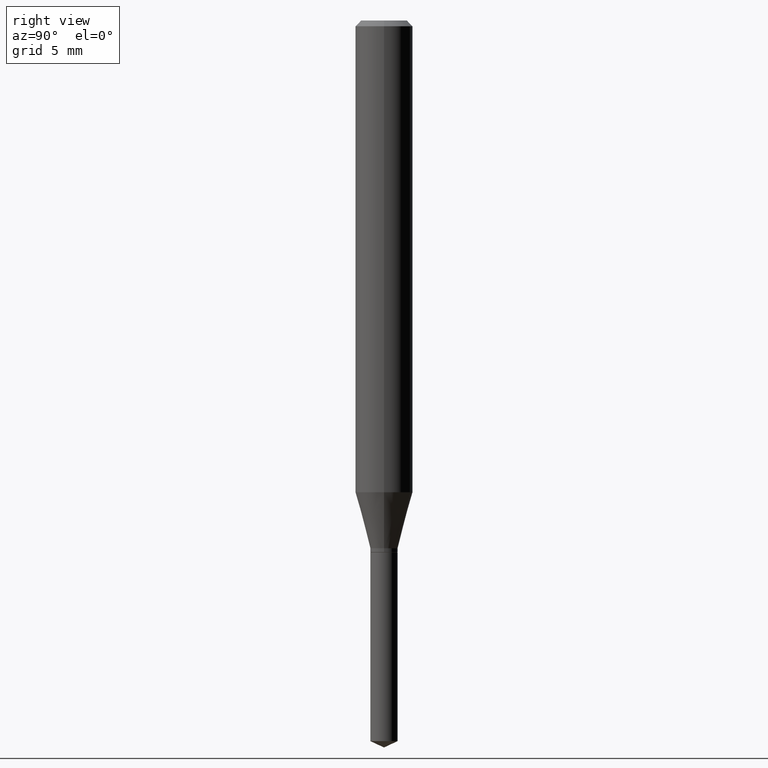
[diagram: clean part render]
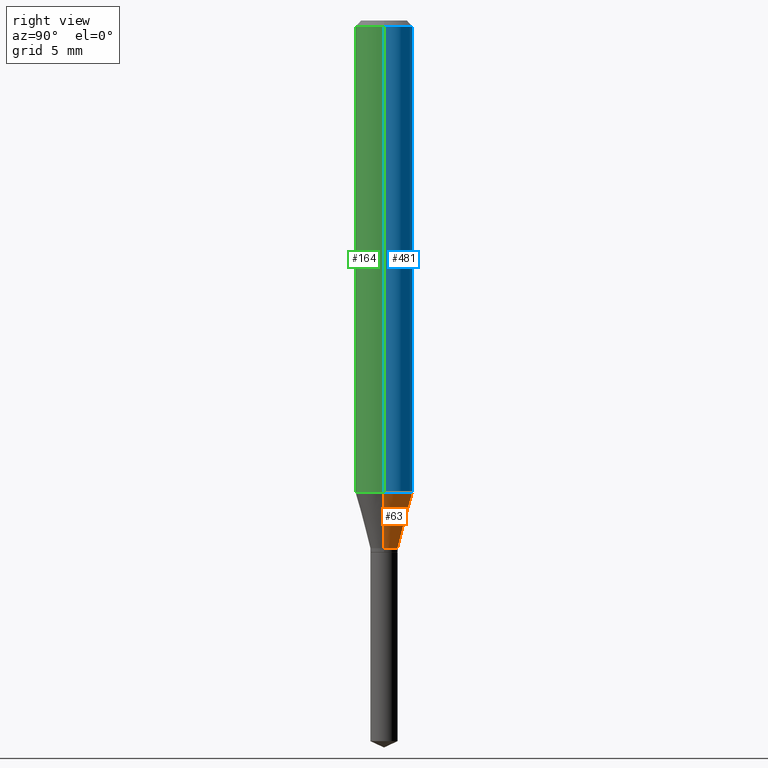
[diagram: same view with three faces highlighted in distinct colors, each labeled with its STEP entity id]
A machine part, right view with three faces highlighted in distinct colors.
Their STEP definitions:

[orange] entity #63 — the highlighted conical surface has half-angle 15 deg.
#17 = EDGE_LOOP ( 'NONE', ( #115, #308, #153, #80 ) ) ;
#31 = CARTESIAN_POINT ( 'NONE',  ( 0.02815000000000000141, -3.988668281494408337E-15, -1.086099999999999843 ) ) ;
#33 = DIRECTION ( 'NONE',  ( 0.2588190451025213501, 1.565188264969621968E-15, 0.9659258262890682012 ) ) ;
#38 = EDGE_CURVE ( 'NONE', #343, #150, #285, .T. ) ;
#49 = EDGE_CURVE ( 'NONE', #55, #343, #87, .T. ) ;
#55 = VERTEX_POINT ( 'NONE', #432 ) ;
#57 = DIRECTION ( 'NONE',  ( 1.000000000000000000, -6.982962677686265133E-15, 0.000000000000000000 ) ) ;
#63 = ADVANCED_FACE ( 'NONE', ( #132 ), #172, .T. ) ;
#80 = ORIENTED_EDGE ( 'NONE', *, *, #119, .F. ) ;
#87 = CIRCLE ( 'NONE', #328, 0.02815000000000000141 ) ;
#115 = ORIENTED_EDGE ( 'NONE', *, *, #49, .T. ) ;
#119 = EDGE_CURVE ( 'NONE', #55, #468, #444, .T. ) ;
#126 = CARTESIAN_POINT ( 'NONE',  ( -0.02815000000000000141, -3.592080102001071674E-15, -1.086099999999999843 ) ) ;
#131 = EDGE_CURVE ( 'NONE', #468, #150, #235, .T. ) ;
#132 = FACE_OUTER_BOUND ( 'NONE', #17, .T. ) ;
#150 = VERTEX_POINT ( 'NONE', #407 ) ;
#153 = ORIENTED_EDGE ( 'NONE', *, *, #131, .F. ) ;
#172 = CONICAL_SURFACE ( 'NONE', #365, 0.02815000000000000141, 0.2617993877991500740 ) ;
#182 = DIRECTION ( 'NONE',  ( 1.000000000000000000, -6.982962677686266711E-15, 0.000000000000000000 ) ) ;
#235 = CIRCLE ( 'NONE', #380, 0.05905000000000011628 ) ;
#243 = DIRECTION ( 'NONE',  ( -2.445468806185136597E-29, 3.491481338843145583E-15, 1.000000000000000000 ) ) ;
#269 = VECTOR ( 'NONE', #291, 39.37007874015747433 ) ;
#284 = CARTESIAN_POINT ( 'NONE',  ( 2.656023670397676877E-29, -3.792097882117539936E-15, -1.086099999999999843 ) ) ;
#285 = LINE ( 'NONE', #126, #269 ) ;
#291 = DIRECTION ( 'NONE',  ( -0.2588190451025213501, 5.211531920934551042E-15, 0.9659258262890682012 ) ) ;
#308 = ORIENTED_EDGE ( 'NONE', *, *, #38, .T. ) ;
#324 = DIRECTION ( 'NONE',  ( -2.445468806185136597E-29, 3.491481338843145583E-15, 1.000000000000000000 ) ) ;
#327 = DIRECTION ( 'NONE',  ( -2.445468806185136597E-29, 3.491481338843145583E-15, 1.000000000000000000 ) ) ;
#328 = AXIS2_PLACEMENT_3D ( 'NONE', #284, #324, #355 ) ;
#343 = VERTEX_POINT ( 'NONE', #347 ) ;
#347 = CARTESIAN_POINT ( 'NONE',  ( -0.02815000000000000141, -3.605871453289501947E-15, -1.086099999999999843 ) ) ;
#355 = DIRECTION ( 'NONE',  ( 1.000000000000000000, -6.982962677686265133E-15, 0.000000000000000000 ) ) ;
#365 = AXIS2_PLACEMENT_3D ( 'NONE', #431, #243, #57 ) ;
#380 = AXIS2_PLACEMENT_3D ( 'NONE', #403, #327, #182 ) ;
#403 = CARTESIAN_POINT ( 'NONE',  ( 2.374011302957737250E-29, -3.389458962435085669E-15, -0.9707796300461214445 ) ) ;
#405 = VECTOR ( 'NONE', #33, 39.37007874015747433 ) ;
#407 = CARTESIAN_POINT ( 'NONE',  ( -0.05905000000000011628, -2.969883476968745782E-15, -0.9707796300461214445 ) ) ;
#431 = CARTESIAN_POINT ( 'NONE',  ( 2.656023670397676877E-29, -3.792097882117539936E-15, -1.086099999999999843 ) ) ;
#432 = CARTESIAN_POINT ( 'NONE',  ( 0.02815000000000000141, -3.988668281494408337E-15, -1.086099999999999843 ) ) ;
#444 = LINE ( 'NONE', #31, #405 ) ;
#468 = VERTEX_POINT ( 'NONE', #479 ) ;
#479 = CARTESIAN_POINT ( 'NONE',  ( 0.05905000000000011628, -3.801802908552460589E-15, -0.9707796300461214445 ) ) ;

[blue] entity #481 — the highlighted cylindrical surface (edge-blend (fillet) strip) has radius 1.4999 mm, axis along (-0, 0, 1).
#7 = VERTEX_POINT ( 'NONE', #395 ) ;
#12 = ORIENTED_EDGE ( 'NONE', *, *, #421, .F. ) ;
#24 = DIRECTION ( 'NONE',  ( -2.445468806185136597E-29, 3.491481338843145583E-15, 1.000000000000000000 ) ) ;
#36 = VECTOR ( 'NONE', #455, 39.37007874015748143 ) ;
#53 = CARTESIAN_POINT ( 'NONE',  ( 2.888098660104663328E-31, -4.123439461173779030E-17, -0.01181000000000006871 ) ) ;
#73 = CARTESIAN_POINT ( 'NONE',  ( -0.05905000000000006077, 4.195754854663395916E-16, -2.904631170795524694E-30 ) ) ;
#92 = FACE_OUTER_BOUND ( 'NONE', #463, .T. ) ;
#113 = CARTESIAN_POINT ( 'NONE',  ( -0.05904999999999999832, -1.295771193057071220E-15, -0.01181000000000006871 ) ) ;
#128 = DIRECTION ( 'NONE',  ( 1.000000000000000000, -6.982962677686266711E-15, 0.000000000000000000 ) ) ;
#131 = EDGE_CURVE ( 'NONE', #468, #150, #235, .T. ) ;
#142 = DIRECTION ( 'NONE',  ( -2.445468806185136877E-29, 3.491481338843145188E-15, 1.000000000000000000 ) ) ;
#144 = VECTOR ( 'NONE', #142, 39.37007874015748143 ) ;
#150 = VERTEX_POINT ( 'NONE', #407 ) ;
#152 = LINE ( 'NONE', #307, #36 ) ;
#179 = CIRCLE ( 'NONE', #433, 0.05904999999999999832 ) ;
#182 = DIRECTION ( 'NONE',  ( 1.000000000000000000, -6.982962677686266711E-15, 0.000000000000000000 ) ) ;
#183 = EDGE_CURVE ( 'NONE', #150, #424, #486, .T. ) ;
#197 = ORIENTED_EDGE ( 'NONE', *, *, #183, .T. ) ;
#235 = CIRCLE ( 'NONE', #380, 0.05905000000000011628 ) ;
#248 = DIRECTION ( 'NONE',  ( -2.445468806185136597E-29, 3.491481338843145583E-15, 1.000000000000000000 ) ) ;
#307 = CARTESIAN_POINT ( 'NONE',  ( 0.05905000000000006077, -4.123439461173744764E-16, 2.879382386107503023E-30 ) ) ;
#327 = DIRECTION ( 'NONE',  ( -2.445468806185136597E-29, 3.491481338843145583E-15, 1.000000000000000000 ) ) ;
#348 = ORIENTED_EDGE ( 'NONE', *, *, #131, .T. ) ;
#354 = ORIENTED_EDGE ( 'NONE', *, *, #464, .F. ) ;
#361 = CYLINDRICAL_SURFACE ( 'NONE', #391, 0.05905000000000006077 ) ;
#380 = AXIS2_PLACEMENT_3D ( 'NONE', #403, #327, #182 ) ;
#391 = AXIS2_PLACEMENT_3D ( 'NONE', #402, #24, #400 ) ;
#395 = CARTESIAN_POINT ( 'NONE',  ( 0.05904999999999999832, -4.535783407291118600E-16, -0.01181000000000006871 ) ) ;
#400 = DIRECTION ( 'NONE',  ( 1.000000000000000000, -6.982962677686266711E-15, 4.876176775795935793E-29 ) ) ;
#402 = CARTESIAN_POINT ( 'NONE',  ( 0.000000000000000000, 0.000000000000000000, 0.000000000000000000 ) ) ;
#403 = CARTESIAN_POINT ( 'NONE',  ( 2.374011302957737250E-29, -3.389458962435085669E-15, -0.9707796300461214445 ) ) ;
#407 = CARTESIAN_POINT ( 'NONE',  ( -0.05905000000000011628, -2.969883476968745782E-15, -0.9707796300461214445 ) ) ;
#421 = EDGE_CURVE ( 'NONE', #468, #7, #152, .T. ) ;
#424 = VERTEX_POINT ( 'NONE', #113 ) ;
#433 = AXIS2_PLACEMENT_3D ( 'NONE', #53, #248, #128 ) ;
#455 = DIRECTION ( 'NONE',  ( -2.445468806185136877E-29, 3.491481338843145188E-15, 1.000000000000000000 ) ) ;
#463 = EDGE_LOOP ( 'NONE', ( #348, #197, #354, #12 ) ) ;
#464 = EDGE_CURVE ( 'NONE', #7, #424, #179, .T. ) ;
#468 = VERTEX_POINT ( 'NONE', #479 ) ;
#479 = CARTESIAN_POINT ( 'NONE',  ( 0.05905000000000011628, -3.801802908552460589E-15, -0.9707796300461214445 ) ) ;
#481 = ADVANCED_FACE ( 'NONE', ( #92 ), #361, .T. ) ;
#486 = LINE ( 'NONE', #73, #144 ) ;

[green] entity #164 — the highlighted cylindrical surface (edge-blend (fillet) strip) has radius 1.4999 mm, axis along (-0, 0, 1).
#7 = VERTEX_POINT ( 'NONE', #395 ) ;
#22 = EDGE_CURVE ( 'NONE', #424, #7, #210, .T. ) ;
#25 = DIRECTION ( 'NONE',  ( 1.000000000000000000, -6.982962677686266711E-15, 4.876176775795935793E-29 ) ) ;
#36 = VECTOR ( 'NONE', #455, 39.37007874015748143 ) ;
#52 = ORIENTED_EDGE ( 'NONE', *, *, #22, .F. ) ;
#54 = DIRECTION ( 'NONE',  ( -2.445468806185136597E-29, 3.491481338843145583E-15, 1.000000000000000000 ) ) ;
#66 = DIRECTION ( 'NONE',  ( -2.445468806185136597E-29, 3.491481338843145583E-15, 1.000000000000000000 ) ) ;
#73 = CARTESIAN_POINT ( 'NONE',  ( -0.05905000000000006077, 4.195754854663395916E-16, -2.904631170795524694E-30 ) ) ;
#111 = ORIENTED_EDGE ( 'NONE', *, *, #421, .T. ) ;
#113 = CARTESIAN_POINT ( 'NONE',  ( -0.05904999999999999832, -1.295771193057071220E-15, -0.01181000000000006871 ) ) ;
#120 = ORIENTED_EDGE ( 'NONE', *, *, #183, .F. ) ;
#137 = AXIS2_PLACEMENT_3D ( 'NONE', #139, #66, #25 ) ;
#139 = CARTESIAN_POINT ( 'NONE',  ( 0.000000000000000000, 0.000000000000000000, 0.000000000000000000 ) ) ;
#142 = DIRECTION ( 'NONE',  ( -2.445468806185136877E-29, 3.491481338843145188E-15, 1.000000000000000000 ) ) ;
#144 = VECTOR ( 'NONE', #142, 39.37007874015748143 ) ;
#149 = DIRECTION ( 'NONE',  ( -2.445468806185136597E-29, 3.491481338843145583E-15, 1.000000000000000000 ) ) ;
#150 = VERTEX_POINT ( 'NONE', #407 ) ;
#152 = LINE ( 'NONE', #307, #36 ) ;
#162 = CARTESIAN_POINT ( 'NONE',  ( 2.888098660104663328E-31, -4.123439461173779030E-17, -0.01181000000000006871 ) ) ;
#164 = ADVANCED_FACE ( 'NONE', ( #180 ), #302, .T. ) ;
#180 = FACE_OUTER_BOUND ( 'NONE', #238, .T. ) ;
#183 = EDGE_CURVE ( 'NONE', #150, #424, #486, .T. ) ;
#188 = CARTESIAN_POINT ( 'NONE',  ( 2.374011302957737250E-29, -3.389458962435085669E-15, -0.9707796300461214445 ) ) ;
#210 = CIRCLE ( 'NONE', #371, 0.05904999999999999832 ) ;
#238 = EDGE_LOOP ( 'NONE', ( #120, #241, #111, #52 ) ) ;
#241 = ORIENTED_EDGE ( 'NONE', *, *, #369, .T. ) ;
#246 = DIRECTION ( 'NONE',  ( 1.000000000000000000, -6.982962677686266711E-15, 0.000000000000000000 ) ) ;
#288 = AXIS2_PLACEMENT_3D ( 'NONE', #188, #149, #303 ) ;
#302 = CYLINDRICAL_SURFACE ( 'NONE', #137, 0.05905000000000006077 ) ;
#303 = DIRECTION ( 'NONE',  ( 1.000000000000000000, -6.982962677686266711E-15, 0.000000000000000000 ) ) ;
#307 = CARTESIAN_POINT ( 'NONE',  ( 0.05905000000000006077, -4.123439461173744764E-16, 2.879382386107503023E-30 ) ) ;
#369 = EDGE_CURVE ( 'NONE', #150, #468, #416, .T. ) ;
#371 = AXIS2_PLACEMENT_3D ( 'NONE', #162, #54, #246 ) ;
#395 = CARTESIAN_POINT ( 'NONE',  ( 0.05904999999999999832, -4.535783407291118600E-16, -0.01181000000000006871 ) ) ;
#407 = CARTESIAN_POINT ( 'NONE',  ( -0.05905000000000011628, -2.969883476968745782E-15, -0.9707796300461214445 ) ) ;
#416 = CIRCLE ( 'NONE', #288, 0.05905000000000011628 ) ;
#421 = EDGE_CURVE ( 'NONE', #468, #7, #152, .T. ) ;
#424 = VERTEX_POINT ( 'NONE', #113 ) ;
#455 = DIRECTION ( 'NONE',  ( -2.445468806185136877E-29, 3.491481338843145188E-15, 1.000000000000000000 ) ) ;
#468 = VERTEX_POINT ( 'NONE', #479 ) ;
#479 = CARTESIAN_POINT ( 'NONE',  ( 0.05905000000000011628, -3.801802908552460589E-15, -0.9707796300461214445 ) ) ;
#486 = LINE ( 'NONE', #73, #144 ) ;